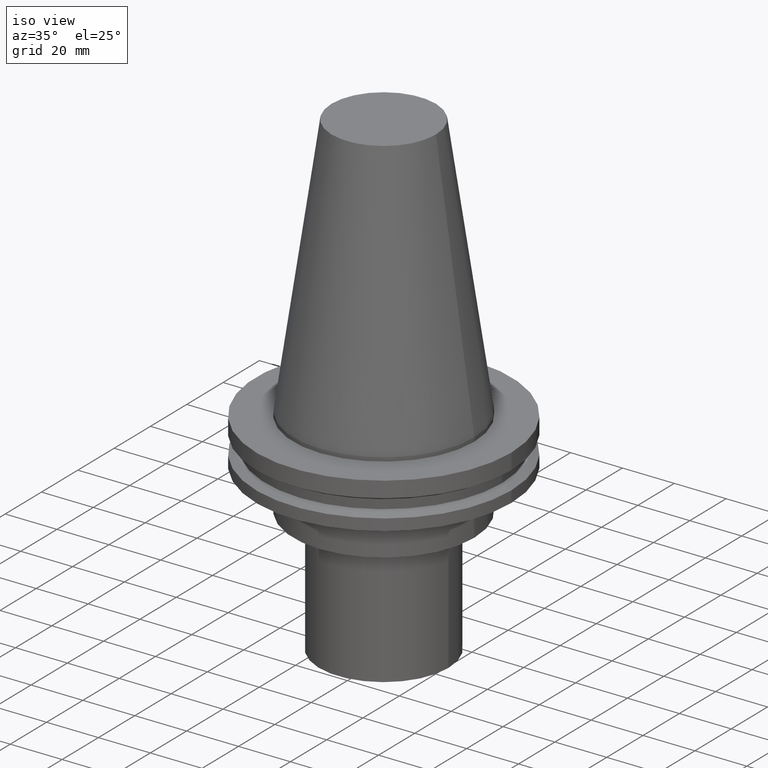
[diagram: clean part render]
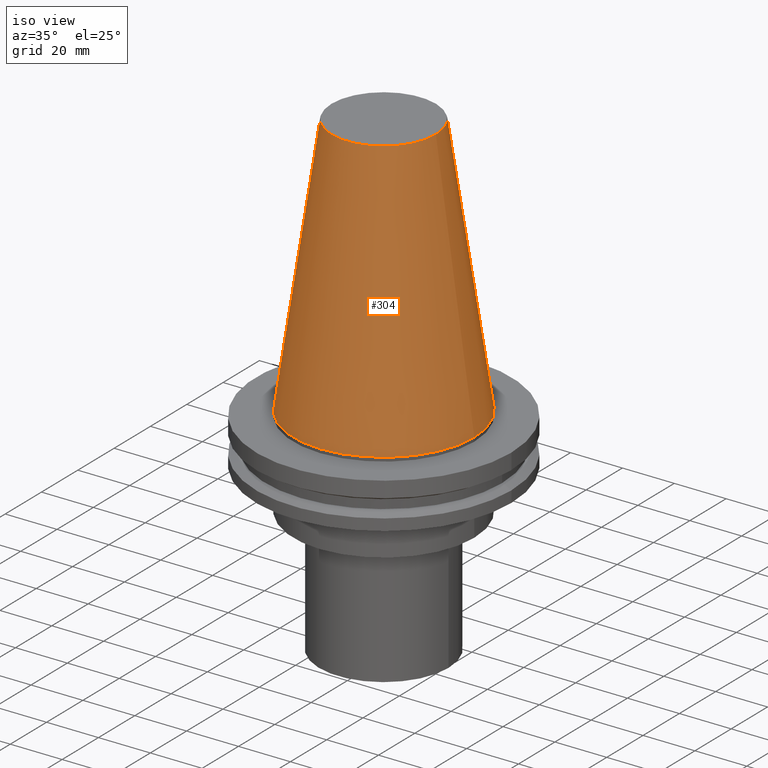
[diagram: same view with one face highlighted and labeled with its STEP entity id]
A machine part, iso view. The second image highlights one B-rep face of the part: STEP entity #304.
In plain terms, the highlighted conical surface has half-angle 8.297 deg.
Its self-contained STEP definition (entity closure, byte-faithful):
#26 = ORIENTED_EDGE ( 'NONE', *, *, #150, .F. ) ;
#29 = EDGE_LOOP ( 'NONE', ( #240 ) ) ;
#34 = CARTESIAN_POINT ( 'NONE',  ( 0.000000000000000000, 0.000000000000000000, 101.5999999999999801 ) ) ;
#35 = VERTEX_POINT ( 'NONE', #149 ) ;
#36 = CARTESIAN_POINT ( 'NONE',  ( 0.000000000000000000, 0.000000000000000000, 0.000000000000000000 ) ) ;
#52 = EDGE_LOOP ( 'NONE', ( #26 ) ) ;
#65 = DIRECTION ( 'NONE',  ( -0.000000000000000000, -0.000000000000000000, 1.000000000000000000 ) ) ;
#80 = CARTESIAN_POINT ( 'NONE',  ( 0.000000000000000000, 0.000000000000000000, 0.000000000000000000 ) ) ;
#85 = DIRECTION ( 'NONE',  ( 0.000000000000000000, 0.000000000000000000, -1.000000000000000000 ) ) ;
#110 = FACE_OUTER_BOUND ( 'NONE', #29, .T. ) ;
#120 = DIRECTION ( 'NONE',  ( 1.000000000000000000, 0.000000000000000000, 0.000000000000000000 ) ) ;
#128 = CONICAL_SURFACE ( 'NONE', #238, 34.92499999999999005, 0.1448138465474119452 ) ;
#134 = EDGE_CURVE ( 'NONE', #343, #343, #353, .T. ) ;
#149 = CARTESIAN_POINT ( 'NONE',  ( 20.10819343178871321, 0.000000000000000000, 101.5999999999999801 ) ) ;
#150 = EDGE_CURVE ( 'NONE', #35, #35, #297, .T. ) ;
#170 = DIRECTION ( 'NONE',  ( -1.000000000000000000, 0.000000000000000000, 0.000000000000000000 ) ) ;
#186 = DIRECTION ( 'NONE',  ( -0.000000000000000000, -0.000000000000000000, 1.000000000000000000 ) ) ;
#238 = AXIS2_PLACEMENT_3D ( 'NONE', #80, #85, #170 ) ;
#240 = ORIENTED_EDGE ( 'NONE', *, *, #134, .T. ) ;
#286 = DIRECTION ( 'NONE',  ( 1.000000000000000000, 0.000000000000000000, 0.000000000000000000 ) ) ;
#297 = CIRCLE ( 'NONE', #376, 20.10819343178871321 ) ;
#304 = ADVANCED_FACE ( 'NONE', ( #363, #110 ), #128, .T. ) ;
#325 = AXIS2_PLACEMENT_3D ( 'NONE', #36, #65, #286 ) ;
#343 = VERTEX_POINT ( 'NONE', #379 ) ;
#353 = CIRCLE ( 'NONE', #325, 34.92499999999999005 ) ;
#363 = FACE_BOUND ( 'NONE', #52, .T. ) ;
#376 = AXIS2_PLACEMENT_3D ( 'NONE', #34, #186, #120 ) ;
#379 = CARTESIAN_POINT ( 'NONE',  ( 34.92499999999999005, 0.000000000000000000, 0.000000000000000000 ) ) ;